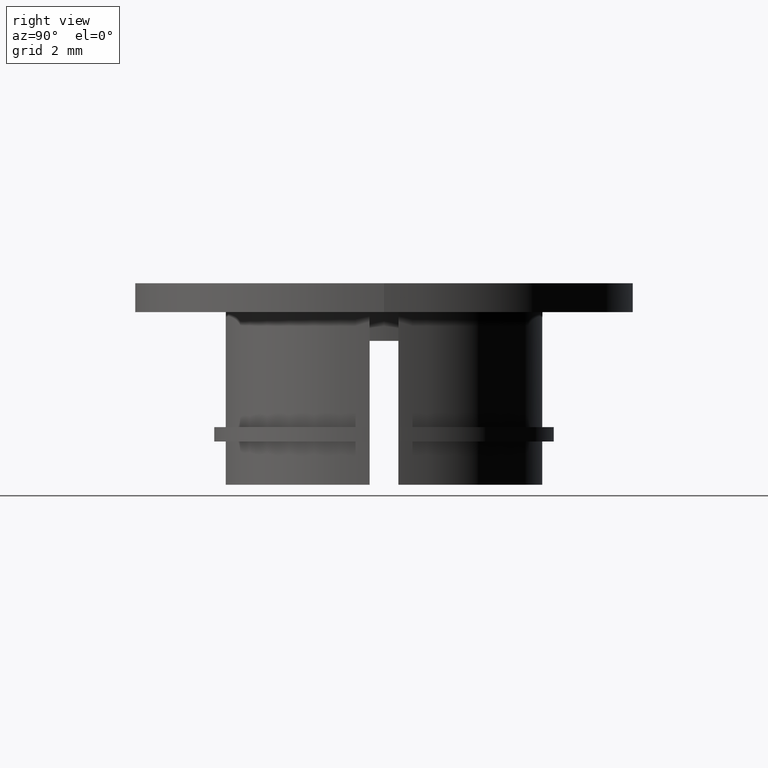
[diagram: clean part render]
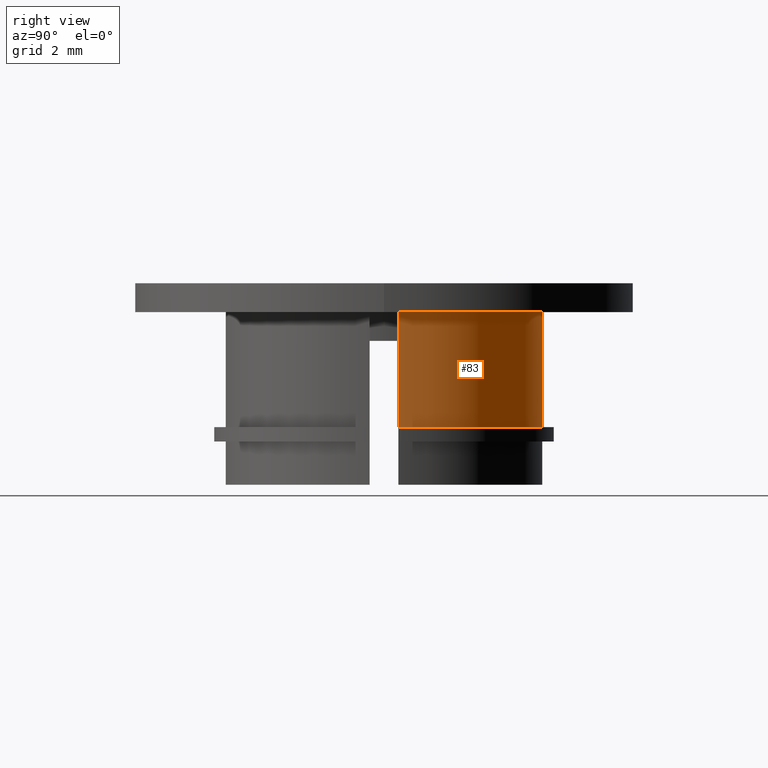
[diagram: same view with one face highlighted and labeled with its STEP entity id]
A machine part, right view. The second image highlights one B-rep face of the part: STEP entity #83.
In plain terms, the highlighted cylindrical surface (partial cylindrical patch) has radius 5.5 mm, axis along (0, 0, -1).
Its self-contained STEP definition (entity closure, byte-faithful):
#83 = ADVANCED_FACE( '', ( #117 ), #118, .T. );
#117 = FACE_OUTER_BOUND( '', #167, .T. );
#118 = CYLINDRICAL_SURFACE( '', #168, 5.50000000000000 );
#167 = EDGE_LOOP( '', ( #276, #277, #278, #279 ) );
#168 = AXIS2_PLACEMENT_3D( '', #280, #281, #282 );
#276 = ORIENTED_EDGE( '', *, *, #403, .F. );
#277 = ORIENTED_EDGE( '', *, *, #392, .F. );
#278 = ORIENTED_EDGE( '', *, *, #427, .F. );
#279 = ORIENTED_EDGE( '', *, *, #428, .T. );
#280 = CARTESIAN_POINT( '', ( 0.000000000000000, 0.000000000000000, 6.00000000000000 ) );
#281 = DIRECTION( '', ( 6.12303176911189E-017, 0.000000000000000, -1.00000000000000 ) );
#282 = DIRECTION( '', ( 1.00000000000000, 0.000000000000000, 6.12303176911189E-017 ) );
#392 = EDGE_CURVE( '', #454, #455, #456, .T. );
#403 = EDGE_CURVE( '', #455, #475, #476, .F. );
#427 = EDGE_CURVE( '', #517, #454, #518, .T. );
#428 = EDGE_CURVE( '', #517, #475, #519, .T. );
#454 = VERTEX_POINT( '', #552 );
#455 = VERTEX_POINT( '', #553 );
#456 = CIRCLE( '', #554, 5.50000000000000 );
#475 = VERTEX_POINT( '', #579 );
#476 = LINE( '', #580, #581 );
#517 = VERTEX_POINT( '', #642 );
#518 = LINE( '', #643, #644 );
#519 = CIRCLE( '', #645, 5.49999999999999 );
#552 = CARTESIAN_POINT( '', ( 5.47722557505166, 0.500000000000004, 6.00000000000000 ) );
#553 = CARTESIAN_POINT( '', ( -5.47722557505166, 0.500000000000002, 6.00000000000000 ) );
#554 = AXIS2_PLACEMENT_3D( '', #682, #683, #684 );
#579 = CARTESIAN_POINT( '', ( -5.47722557505166, 0.500000000000002, 2.00000000000000 ) );
#580 = CARTESIAN_POINT( '', ( -5.47722557505166, 0.500000000000002, 6.00000000000000 ) );
#581 = VECTOR( '', #703, 1000.00000000000 );
#642 = CARTESIAN_POINT( '', ( 5.47722557505166, 0.500000000000004, 2.00000000000000 ) );
#643 = CARTESIAN_POINT( '', ( 5.47722557505166, 0.500000000000004, 6.00000000000000 ) );
#644 = VECTOR( '', #733, 1000.00000000000 );
#645 = AXIS2_PLACEMENT_3D( '', #734, #735, #736 );
#682 = CARTESIAN_POINT( '', ( -1.59326504310453E-031, 0.000000000000000, 6.00000000000000 ) );
#683 = DIRECTION( '', ( -6.12303176911189E-017, 0.000000000000000, 1.00000000000000 ) );
#684 = DIRECTION( '', ( 1.00000000000000, 0.000000000000000, 6.12303176911189E-017 ) );
#703 = DIRECTION( '', ( -6.12303176911189E-017, 0.000000000000000, 1.00000000000000 ) );
#733 = DIRECTION( '', ( -6.12303176911189E-017, 0.000000000000000, 1.00000000000000 ) );
#734 = CARTESIAN_POINT( '', ( 2.44921270764475E-016, 0.000000000000000, 2.00000000000000 ) );
#735 = DIRECTION( '', ( -6.12303176911189E-017, 0.000000000000000, 1.00000000000000 ) );
#736 = DIRECTION( '', ( 1.00000000000000, 0.000000000000000, 6.12303176911189E-017 ) );